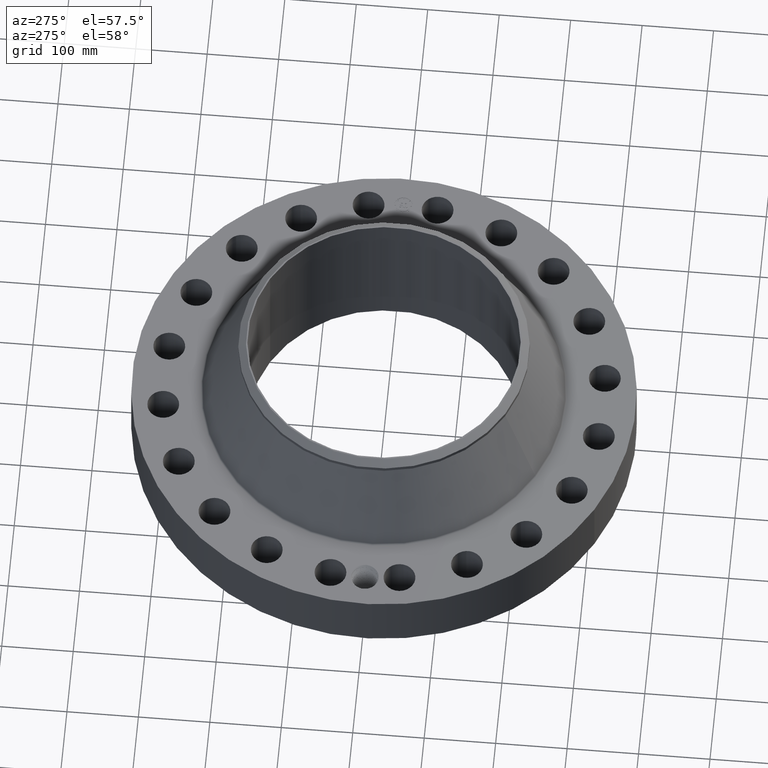
[diagram: clean part render]
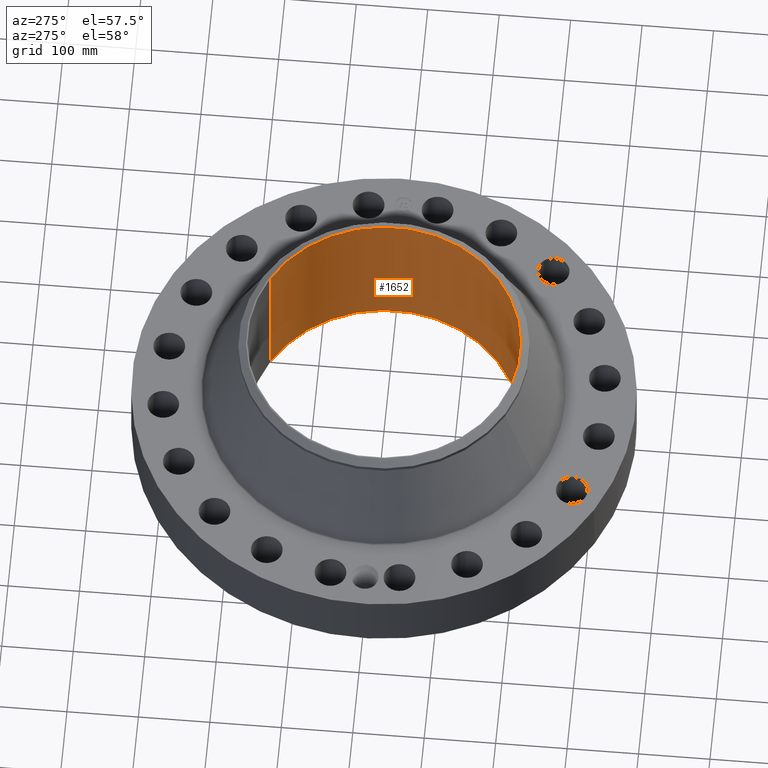
[diagram: same view with one face highlighted and labeled with its STEP entity id]
A machine part, auxiliary view. The second image highlights one B-rep face of the part: STEP entity #1652.
In plain terms, the highlighted cylindrical surface (partial cylindrical patch) has radius 190.5 mm, axis along (0, 0, -1).
Its self-contained STEP definition (entity closure, byte-faithful):
#254=AXIS2_PLACEMENT_3D('Circle Axis2P3D',#252,#253,$) ;
#1583=AXIS2_PLACEMENT_3D('Cylinder Axis2P3D',#1580,#1581,#1582) ;
#1587=AXIS2_PLACEMENT_3D('Circle Axis2P3D',#1585,#1586,$) ;
#252=CARTESIAN_POINT('Axis2P3D Location',(0.,0.,0.250000000001)) ;
#256=CARTESIAN_POINT('Vertex',(3.59569153955,6.5818692142,0.250000000001)) ;
#258=CARTESIAN_POINT('Vertex',(-3.59569153955,-6.5818692142,0.250000000001)) ;
#1580=CARTESIAN_POINT('Axis2P3D Location',(0.,0.,4.50000000002)) ;
#1585=CARTESIAN_POINT('Axis2P3D Location',(0.,0.,8.75000000003)) ;
#1589=CARTESIAN_POINT('Vertex',(3.59569153955,6.5818692142,8.75000000003)) ;
#1591=CARTESIAN_POINT('Vertex',(-3.59569153955,-6.5818692142,8.75000000003)) ;
#1594=CARTESIAN_POINT('Line Origine',(3.59569153955,6.5818692142,4.50000000002)) ;
#1599=CARTESIAN_POINT('Line Origine',(-3.59569153955,-6.5818692142,4.50000000002)) ;
#1611=CARTESIAN_POINT('Control Point',(0.219395640473,-7.4967903501,0.820143615352)) ;
#1612=CARTESIAN_POINT('Control Point',(0.194443383064,-7.49752058481,0.774468814536)) ;
#1613=CARTESIAN_POINT('Control Point',(0.157606812936,-7.49849471468,0.735290428614)) ;
#1614=CARTESIAN_POINT('Control Point',(0.11111198669,-7.49944203012,0.706758578576)) ;
#1615=CARTESIAN_POINT('Control Point',(0.0336784240829,-7.50019577271,0.684118153269)) ;
#1616=CARTESIAN_POINT('Control Point',(-0.0446655198003,-7.49993536622,0.691942866252)) ;
#1617=CARTESIAN_POINT('Control Point',(-0.070293708656,-7.4997332065,0.697954489355)) ;
#1618=CARTESIAN_POINT('Control Point',(-0.143947894866,-7.49883979488,0.725782955159)) ;
#1619=CARTESIAN_POINT('Control Point',(-0.203234184412,-7.49738136776,0.780491154442)) ;
#1620=CARTESIAN_POINT('Control Point',(-0.232201664779,-7.49642464141,0.826725689951)) ;
#1621=CARTESIAN_POINT('Control Point',(-0.255839148849,-7.49563793753,0.904874231007)) ;
#1622=CARTESIAN_POINT('Control Point',(-0.248285193698,-7.49588914094,0.984243359795)) ;
#1623=CARTESIAN_POINT('Control Point',(-0.242051359792,-7.49609946172,1.01080971468)) ;
#1624=CARTESIAN_POINT('Control Point',(-0.232316958255,-7.49641220417,1.03620407111)) ;
#1625=CARTESIAN_POINT('Control Point',(-0.219395640473,-7.4967903501,1.05985638466)) ;
#1626=CARTESIAN_POINT('Vertex',(0.219395640473,-7.4967903501,0.820143615352)) ;
#1628=CARTESIAN_POINT('Vertex',(-0.219395640473,-7.4967903501,1.05985638466)) ;
#1632=CARTESIAN_POINT('Control Point',(-0.219395640473,-7.4967903501,1.05985638466)) ;
#1633=CARTESIAN_POINT('Control Point',(-0.194443383067,-7.49752058481,1.10553118547)) ;
#1634=CARTESIAN_POINT('Control Point',(-0.157606812944,-7.49849471468,1.14470957139)) ;
#1635=CARTESIAN_POINT('Control Point',(-0.111111986681,-7.49944203012,1.17324142144)) ;
#1636=CARTESIAN_POINT('Control Point',(-0.0336784240749,-7.50019577271,1.19588184674)) ;
#1637=CARTESIAN_POINT('Control Point',(0.0446655198076,-7.49993536622,1.18805713376)) ;
#1638=CARTESIAN_POINT('Control Point',(0.070293708645,-7.4997332065,1.18204551066)) ;
#1639=CARTESIAN_POINT('Control Point',(0.143947894902,-7.49883979488,1.15421704484)) ;
#1640=CARTESIAN_POINT('Control Point',(0.203234184477,-7.49738136776,1.09950884551)) ;
#1641=CARTESIAN_POINT('Control Point',(0.232201664753,-7.49642464141,1.05327431014)) ;
#1642=CARTESIAN_POINT('Control Point',(0.255839148862,-7.49563793753,0.975125769015)) ;
#1643=CARTESIAN_POINT('Control Point',(0.248285193692,-7.49588914094,0.895756640151)) ;
#1644=CARTESIAN_POINT('Control Point',(0.242051359815,-7.49609946172,0.869190285389)) ;
#1645=CARTESIAN_POINT('Control Point',(0.23231695827,-7.49641220417,0.843795928927)) ;
#1646=CARTESIAN_POINT('Control Point',(0.219395640473,-7.4967903501,0.820143615352)) ;
#253=DIRECTION('Axis2P3D Direction',(0.,0.,-0.0393700787402)) ;
#1581=DIRECTION('Axis2P3D Direction',(0.,0.,-0.0393700787402)) ;
#1582=DIRECTION('Axis2P3D XDirection',(-0.0188750212049,-0.0345504945626,0.)) ;
#1586=DIRECTION('Axis2P3D Direction',(0.,0.,-0.0393700787402)) ;
#1595=DIRECTION('Vector Direction',(0.,0.,-0.0393700787402)) ;
#1600=DIRECTION('Vector Direction',(0.,0.,-0.0393700787402)) ;
#1596=VECTOR('Line Direction',#1595,0.0393700787402) ;
#1601=VECTOR('Line Direction',#1600,0.0393700787402) ;
#1605=ORIENTED_EDGE('',*,*,#1593,.F.) ;
#1606=ORIENTED_EDGE('',*,*,#1598,.T.) ;
#1607=ORIENTED_EDGE('',*,*,#260,.T.) ;
#1608=ORIENTED_EDGE('',*,*,#1603,.F.) ;
#1649=ORIENTED_EDGE('',*,*,#1630,.F.) ;
#1650=ORIENTED_EDGE('',*,*,#1647,.F.) ;
#1651=FACE_BOUND('',#1648,.T.) ;
#1652=ADVANCED_FACE('PartBody',(#1609,#1651),#1584,.F.) ;
#1610=B_SPLINE_CURVE_WITH_KNOTS('',5,(#1611,#1612,#1613,#1614,#1615,#1616,#1617,#1618,#1619,#1620,#1621,#1622,#1623,#1624,#1625),.UNSPECIFIED.,.F.,.U.,(6,3,3,3,6),(0.,9.34867664166,14.0227250437,23.3727519941,28.2138859942),.UNSPECIFIED.) ;
#1631=B_SPLINE_CURVE_WITH_KNOTS('',5,(#1632,#1633,#1634,#1635,#1636,#1637,#1638,#1639,#1640,#1641,#1642,#1643,#1644,#1645,#1646),.UNSPECIFIED.,.F.,.U.,(6,3,3,3,6),(0.,9.34867664065,14.0227250435,23.3727520018,28.2138860075),.UNSPECIFIED.) ;
#255=CIRCLE('generated circle',#254,7.50000000003) ;
#1588=CIRCLE('generated circle',#1587,7.50000000003) ;
#1584=CYLINDRICAL_SURFACE('generated cylinder',#1583,7.50000000003) ;
#260=EDGE_CURVE('',#257,#259,#255,.T.) ;
#1593=EDGE_CURVE('',#1590,#1592,#1588,.T.) ;
#1598=EDGE_CURVE('',#1590,#257,#1597,.T.) ;
#1603=EDGE_CURVE('',#1592,#259,#1602,.T.) ;
#1630=EDGE_CURVE('',#1627,#1629,#1610,.T.) ;
#1647=EDGE_CURVE('',#1629,#1627,#1631,.T.) ;
#1604=EDGE_LOOP('',(#1605,#1606,#1607,#1608)) ;
#1648=EDGE_LOOP('',(#1649,#1650)) ;
#1609=FACE_OUTER_BOUND('',#1604,.T.) ;
#1597=LINE('Line',#1594,#1596) ;
#1602=LINE('Line',#1599,#1601) ;
#257=VERTEX_POINT('',#256) ;
#259=VERTEX_POINT('',#258) ;
#1590=VERTEX_POINT('',#1589) ;
#1592=VERTEX_POINT('',#1591) ;
#1627=VERTEX_POINT('',#1626) ;
#1629=VERTEX_POINT('',#1628) ;